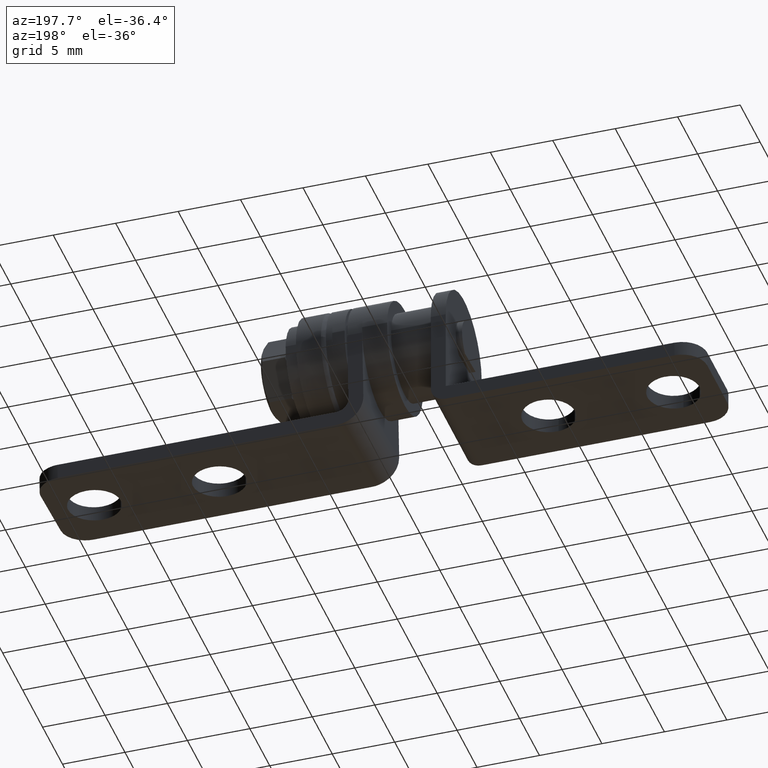
[diagram: clean part render]
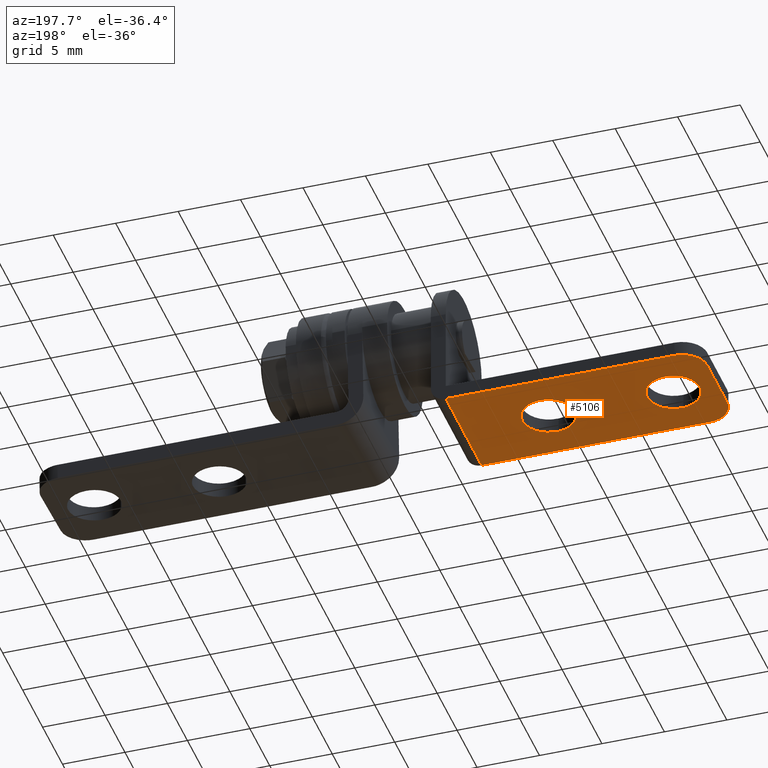
[diagram: same view with one face highlighted and labeled with its STEP entity id]
A machine part, auxiliary view. The second image highlights one B-rep face of the part: STEP entity #5106.
In plain terms, the highlighted face is a freeform B-spline surface patch.
Its self-contained STEP definition (entity closure, byte-faithful):
#4299=CARTESIAN_POINT('',(-23.371798066858510,2.096083076662002,-7.999999999988910));
#4300=VERTEX_POINT('',#4299);
#4306=CARTESIAN_POINT('',(-21.399999999999999,-1.668354E-011,-7.999999999988910));
#4307=VERTEX_POINT('',#4306);
#4308=CARTESIAN_POINT('',(-21.399999999999999,-1.668354E-011,-7.999999999988910));
#4309=CARTESIAN_POINT('',(-21.399999999999999,1.975482740373582,-7.999999999988910));
#4310=CARTESIAN_POINT('',(-23.371798066858506,2.096083076662002,-7.999999999988910));
#4318=(BOUNDED_CURVE()B_SPLINE_CURVE(2,(#4308,#4309,#4310),.UNSPECIFIED.,.F.,.U.)B_SPLINE_CURVE_WITH_KNOTS((3,3),(0.500000000000000,0.739332962232231),.UNSPECIFIED.)CURVE()GEOMETRIC_REPRESENTATION_ITEM()RATIONAL_B_SPLINE_CURVE((1.0,0.719603993294574,0.976072041652332))REPRESENTATION_ITEM(''));
#4319=EDGE_CURVE('',#4307,#4300,#4318,.T.);
#4321=CARTESIAN_POINT('',(-23.628201933141490,-2.096083076695369,-7.999999999988910));
#4322=VERTEX_POINT('',#4321);
#4323=CARTESIAN_POINT('',(-23.628201933141490,-2.096083076695370,-7.999999999988911));
#4324=CARTESIAN_POINT('',(-23.564160802986347,-2.100000000016684,-7.999999999988910));
#4325=CARTESIAN_POINT('',(-23.500000000000000,-2.100000000016684,-7.999999999988910));
#4326=CARTESIAN_POINT('',(-21.400000000000002,-2.100000000016684,-7.999999999988910));
#4327=CARTESIAN_POINT('',(-21.399999999999999,-1.668354E-011,-7.999999999988910));
#4335=(BOUNDED_CURVE()B_SPLINE_CURVE(2,(#4323,#4324,#4325,#4326,#4327),.UNSPECIFIED.,.F.,.U.)B_SPLINE_CURVE_WITH_KNOTS((3,2,3),(0.239332962232231,0.250000000000000,0.500000000000000),.UNSPECIFIED.)CURVE()GEOMETRIC_REPRESENTATION_ITEM()RATIONAL_B_SPLINE_CURVE((0.976072041652333,0.987502787891974,1.0,0.707106781186548,1.0))REPRESENTATION_ITEM(''));
#4336=EDGE_CURVE('',#4322,#4307,#4335,.T.);
#4380=CARTESIAN_POINT('',(-25.600000000000001,-1.668354E-011,-7.999999999988910));
#4381=VERTEX_POINT('',#4380);
#4382=CARTESIAN_POINT('',(-25.600000000000001,-1.668354E-011,-7.999999999988910));
#4383=CARTESIAN_POINT('',(-25.600000000000001,-1.975482740406951,-7.999999999988910));
#4384=CARTESIAN_POINT('',(-23.628201933141483,-2.096083076695371,-7.999999999988911));
#4392=(BOUNDED_CURVE()B_SPLINE_CURVE(2,(#4382,#4383,#4384),.UNSPECIFIED.,.F.,.U.)B_SPLINE_CURVE_WITH_KNOTS((3,3),(0.0,0.239332962232231),.UNSPECIFIED.)CURVE()GEOMETRIC_REPRESENTATION_ITEM()RATIONAL_B_SPLINE_CURVE((1.0,0.719603993294574,0.976072041652333))REPRESENTATION_ITEM(''));
#4393=EDGE_CURVE('',#4381,#4322,#4392,.T.);
#4395=CARTESIAN_POINT('',(-23.371798066858506,2.096083076662002,-7.999999999988910));
#4396=CARTESIAN_POINT('',(-23.435839197013646,2.099999999983316,-7.999999999988910));
#4397=CARTESIAN_POINT('',(-23.500000000000000,2.099999999983316,-7.999999999988910));
#4398=CARTESIAN_POINT('',(-25.600000000000001,2.099999999983317,-7.999999999988910));
#4399=CARTESIAN_POINT('',(-25.600000000000001,-1.668354E-011,-7.999999999988910));
#4407=(BOUNDED_CURVE()B_SPLINE_CURVE(2,(#4395,#4396,#4397,#4398,#4399),.UNSPECIFIED.,.F.,.U.)B_SPLINE_CURVE_WITH_KNOTS((3,2,3),(0.739332962232231,0.750000000000000,1.0),.UNSPECIFIED.)CURVE()GEOMETRIC_REPRESENTATION_ITEM()RATIONAL_B_SPLINE_CURVE((0.976072041652332,0.987502787891974,1.0,0.707106781186548,1.0))REPRESENTATION_ITEM(''));
#4408=EDGE_CURVE('',#4300,#4381,#4407,.T.);
#4481=CARTESIAN_POINT('',(-13.371798066858370,2.096083076662001,-7.999999999988910));
#4482=VERTEX_POINT('',#4481);
#4488=CARTESIAN_POINT('',(-11.399999999999860,-1.668354E-011,-7.999999999988910));
#4489=VERTEX_POINT('',#4488);
#4490=CARTESIAN_POINT('',(-11.399999999999860,-1.668354E-011,-7.999999999988910));
#4491=CARTESIAN_POINT('',(-11.399999999999862,1.975482740373582,-7.999999999988910));
#4492=CARTESIAN_POINT('',(-13.371798066858370,2.096083076662002,-7.999999999988910));
#4500=(BOUNDED_CURVE()B_SPLINE_CURVE(2,(#4490,#4491,#4492),.UNSPECIFIED.,.F.,.U.)B_SPLINE_CURVE_WITH_KNOTS((3,3),(0.500000000000000,0.739332962232231),.UNSPECIFIED.)CURVE()GEOMETRIC_REPRESENTATION_ITEM()RATIONAL_B_SPLINE_CURVE((1.0,0.719603993294574,0.976072041652332))REPRESENTATION_ITEM(''));
#4501=EDGE_CURVE('',#4489,#4482,#4500,.T.);
#4503=CARTESIAN_POINT('',(-13.628201933141350,-2.096083076695369,-7.999999999988910));
#4504=VERTEX_POINT('',#4503);
#4505=CARTESIAN_POINT('',(-13.628201933141348,-2.096083076695369,-7.999999999988909));
#4506=CARTESIAN_POINT('',(-13.564160802986207,-2.100000000016684,-7.999999999988910));
#4507=CARTESIAN_POINT('',(-13.499999999999860,-2.100000000016684,-7.999999999988910));
#4508=CARTESIAN_POINT('',(-11.399999999999864,-2.100000000016684,-7.999999999988910));
#4509=CARTESIAN_POINT('',(-11.399999999999860,-1.668354E-011,-7.999999999988910));
#4517=(BOUNDED_CURVE()B_SPLINE_CURVE(2,(#4505,#4506,#4507,#4508,#4509),.UNSPECIFIED.,.F.,.U.)B_SPLINE_CURVE_WITH_KNOTS((3,2,3),(0.239332962232231,0.250000000000000,0.500000000000000),.UNSPECIFIED.)CURVE()GEOMETRIC_REPRESENTATION_ITEM()RATIONAL_B_SPLINE_CURVE((0.976072041652333,0.987502787891974,1.0,0.707106781186548,1.0))REPRESENTATION_ITEM(''));
#4518=EDGE_CURVE('',#4504,#4489,#4517,.T.);
#4562=CARTESIAN_POINT('',(-15.599999999999859,-1.668354E-011,-7.999999999988910));
#4563=VERTEX_POINT('',#4562);
#4564=CARTESIAN_POINT('',(-15.599999999999859,-1.668354E-011,-7.999999999988910));
#4565=CARTESIAN_POINT('',(-15.599999999999856,-1.975482740406949,-7.999999999988910));
#4566=CARTESIAN_POINT('',(-13.628201933141350,-2.096083076695369,-7.999999999988909));
#4574=(BOUNDED_CURVE()B_SPLINE_CURVE(2,(#4564,#4565,#4566),.UNSPECIFIED.,.F.,.U.)B_SPLINE_CURVE_WITH_KNOTS((3,3),(0.0,0.239332962232231),.UNSPECIFIED.)CURVE()GEOMETRIC_REPRESENTATION_ITEM()RATIONAL_B_SPLINE_CURVE((1.0,0.719603993294574,0.976072041652332))REPRESENTATION_ITEM(''));
#4575=EDGE_CURVE('',#4563,#4504,#4574,.T.);
#4577=CARTESIAN_POINT('',(-13.371798066858370,2.096083076662002,-7.999999999988910));
#4578=CARTESIAN_POINT('',(-13.435839197013513,2.099999999983316,-7.999999999988910));
#4579=CARTESIAN_POINT('',(-13.499999999999860,2.099999999983316,-7.999999999988910));
#4580=CARTESIAN_POINT('',(-15.599999999999856,2.099999999983317,-7.999999999988910));
#4581=CARTESIAN_POINT('',(-15.599999999999859,-1.668354E-011,-7.999999999988910));
#4589=(BOUNDED_CURVE()B_SPLINE_CURVE(2,(#4577,#4578,#4579,#4580,#4581),.UNSPECIFIED.,.F.,.U.)B_SPLINE_CURVE_WITH_KNOTS((3,2,3),(0.739332962232231,0.750000000000000,1.0),.UNSPECIFIED.)CURVE()GEOMETRIC_REPRESENTATION_ITEM()RATIONAL_B_SPLINE_CURVE((0.976072041652332,0.987502787891974,1.0,0.707106781186548,1.0))REPRESENTATION_ITEM(''));
#4590=EDGE_CURVE('',#4482,#4563,#4589,.T.);
#4616=CARTESIAN_POINT('',(-27.0,2.500000000000000,-7.999999999999108));
#4617=VERTEX_POINT('',#4616);
#4618=CARTESIAN_POINT('',(-27.0,-2.500000000000115,-7.999999999999100));
#4619=VERTEX_POINT('',#4618);
#4620=CARTESIAN_POINT('',(-27.0,2.500000000000000,-7.999999999999108));
#4621=CARTESIAN_POINT('',(-27.0,-2.500000000000115,-7.999999999999100));
#4622=QUASI_UNIFORM_CURVE('',1,(#4620,#4621),.UNSPECIFIED.,.F.,.U.);
#4623=EDGE_CURVE('',#4617,#4619,#4622,.T.);
#4888=CARTESIAN_POINT('',(-6.699999999999821,4.500000000000000,-7.999999999999108));
#4889=VERTEX_POINT('',#4888);
#4910=CARTESIAN_POINT('',(-6.699999999999821,-4.500000000000110,-7.999999999999100));
#4911=VERTEX_POINT('',#4910);
#4925=CARTESIAN_POINT('',(-6.699999999999821,4.500000000000000,-7.999999999999108));
#4926=CARTESIAN_POINT('',(-6.699999999999821,-4.500000000000110,-7.999999999999100));
#4927=QUASI_UNIFORM_CURVE('',1,(#4925,#4926),.UNSPECIFIED.,.F.,.U.);
#4928=EDGE_CURVE('',#4889,#4911,#4927,.T.);
#4962=CARTESIAN_POINT('',(-25.0,4.500000000000000,-7.999999999999108));
#4963=VERTEX_POINT('',#4962);
#4969=CARTESIAN_POINT('',(-27.0,2.500000000000000,-7.999999999999108));
#4970=CARTESIAN_POINT('',(-27.000000000000011,4.500000000000002,-7.999999999999108));
#4971=CARTESIAN_POINT('',(-25.0,4.500000000000001,-7.999999999999108));
#4979=(BOUNDED_CURVE()B_SPLINE_CURVE(2,(#4969,#4970,#4971),.UNSPECIFIED.,.F.,.U.)CURVE()GEOMETRIC_REPRESENTATION_ITEM()QUASI_UNIFORM_CURVE()RATIONAL_B_SPLINE_CURVE((1.0,0.707106781186548,1.0))REPRESENTATION_ITEM(''));
#4980=EDGE_CURVE('',#4617,#4963,#4979,.T.);
#5000=CARTESIAN_POINT('',(-25.0,-4.500000000000110,-7.999999999999100));
#5001=VERTEX_POINT('',#5000);
#5002=CARTESIAN_POINT('',(-25.0,-4.500000000000116,-7.999999999999100));
#5003=CARTESIAN_POINT('',(-27.000000000000011,-4.500000000000116,-7.999999999999100));
#5004=CARTESIAN_POINT('',(-27.0,-2.500000000000115,-7.999999999999100));
#5012=(BOUNDED_CURVE()B_SPLINE_CURVE(2,(#5002,#5003,#5004),.UNSPECIFIED.,.F.,.U.)CURVE()GEOMETRIC_REPRESENTATION_ITEM()QUASI_UNIFORM_CURVE()RATIONAL_B_SPLINE_CURVE((1.0,0.707106781186548,1.0))REPRESENTATION_ITEM(''));
#5013=EDGE_CURVE('',#5001,#4619,#5012,.T.);
#5073=CARTESIAN_POINT('',(-28.013984960654671,4.949549982556260,-7.999999999999108));
#5074=CARTESIAN_POINT('',(-28.013984960654671,-4.949550223955182,-7.999999999999108));
#5075=CARTESIAN_POINT('',(-5.686014494856721,4.949549982556260,-7.999999999999108));
#5076=CARTESIAN_POINT('',(-5.686014494856721,-4.949550223955182,-7.999999999999108));
#5077=B_SPLINE_SURFACE_WITH_KNOTS('',1,1,((#5073,#5075),(#5074,#5076)),.UNSPECIFIED.,.F.,.F.,.U.,(2,2),(2,2),(0.0,9.899100206511442),(0.0,22.327970465797950),.UNSPECIFIED.);
#5078=CARTESIAN_POINT('',(-25.0,4.500000000000000,-7.999999999999108));
#5079=CARTESIAN_POINT('',(-6.699999999999821,4.500000000000000,-7.999999999999108));
#5080=QUASI_UNIFORM_CURVE('',1,(#5078,#5079),.UNSPECIFIED.,.F.,.U.);
#5081=EDGE_CURVE('',#4963,#4889,#5080,.T.);
#5082=ORIENTED_EDGE('',*,*,#5081,.T.);
#5083=ORIENTED_EDGE('',*,*,#4928,.T.);
#5084=CARTESIAN_POINT('',(-25.0,-4.500000000000110,-7.999999999999100));
#5085=CARTESIAN_POINT('',(-6.699999999999821,-4.500000000000110,-7.999999999999100));
#5086=QUASI_UNIFORM_CURVE('',1,(#5084,#5085),.UNSPECIFIED.,.F.,.U.);
#5087=EDGE_CURVE('',#5001,#4911,#5086,.T.);
#5088=ORIENTED_EDGE('',*,*,#5087,.F.);
#5089=ORIENTED_EDGE('',*,*,#5013,.T.);
#5090=ORIENTED_EDGE('',*,*,#4623,.F.);
#5091=ORIENTED_EDGE('',*,*,#4980,.T.);
#5092=EDGE_LOOP('',(#5082,#5083,#5088,#5089,#5090,#5091));
#5093=FACE_OUTER_BOUND('',#5092,.T.);
#5094=ORIENTED_EDGE('',*,*,#4501,.T.);
#5095=ORIENTED_EDGE('',*,*,#4590,.T.);
#5096=ORIENTED_EDGE('',*,*,#4575,.T.);
#5097=ORIENTED_EDGE('',*,*,#4518,.T.);
#5098=EDGE_LOOP('',(#5094,#5095,#5096,#5097));
#5099=FACE_BOUND('',#5098,.T.);
#5100=ORIENTED_EDGE('',*,*,#4319,.T.);
#5101=ORIENTED_EDGE('',*,*,#4408,.T.);
#5102=ORIENTED_EDGE('',*,*,#4393,.T.);
#5103=ORIENTED_EDGE('',*,*,#4336,.T.);
#5104=EDGE_LOOP('',(#5100,#5101,#5102,#5103));
#5105=FACE_BOUND('',#5104,.T.);
#5106=ADVANCED_FACE('',(#5093,#5099,#5105),#5077,.F.);